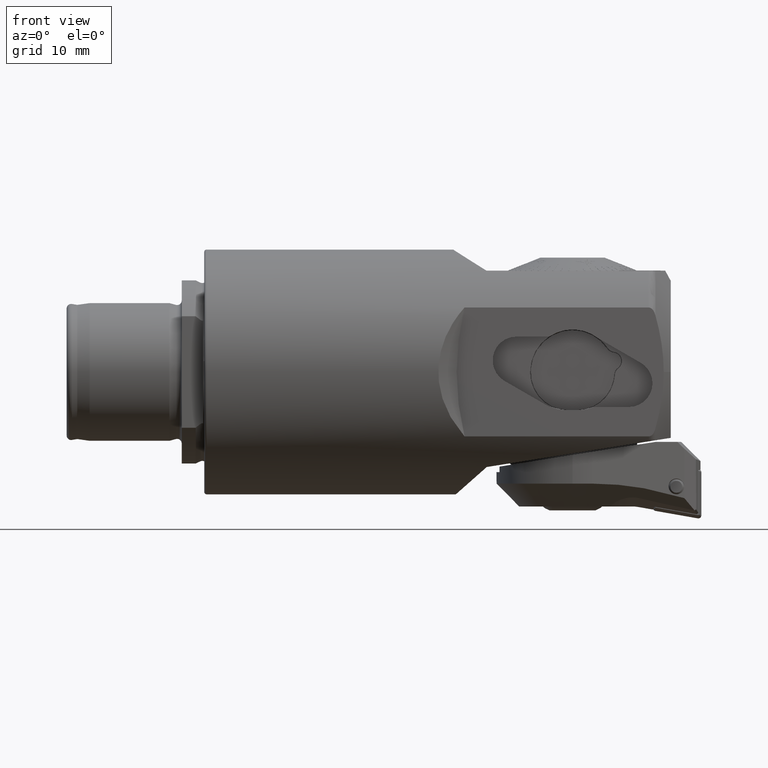
[diagram: clean part render]
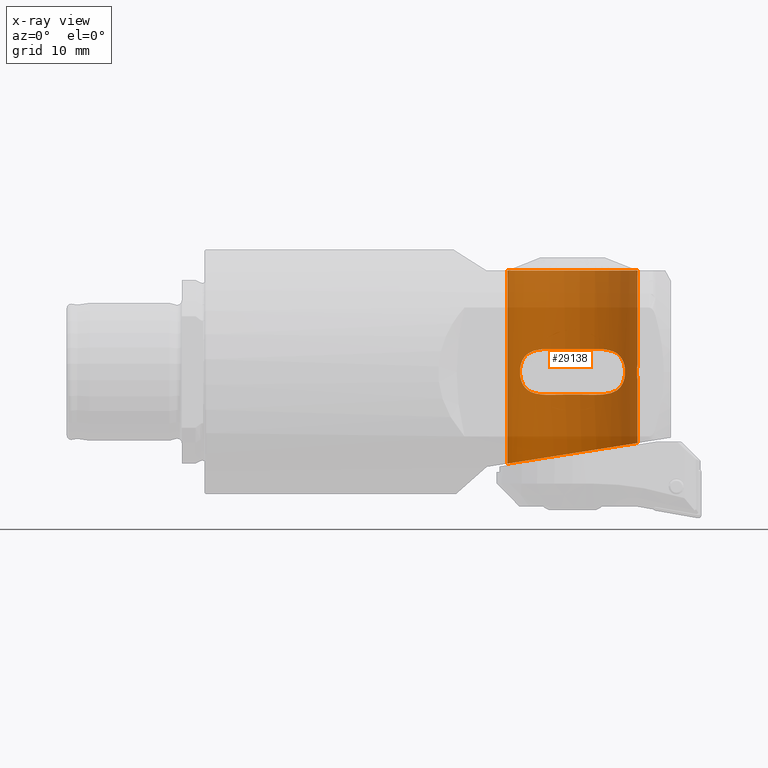
[diagram: x-ray — body ghosted, one internal face saturated and labeled with its STEP entity id]
A machine part, front view, then the same camera in x-ray: the body is ghosted and one INTERNAL B-rep face — a face not visible from any outside direction — is saturated and labeled: STEP entity #29138.
In plain terms, the highlighted cylindrical surface (partial cylindrical patch) has radius 8.5 mm, axis along (-0, 0, 1).
Its self-contained STEP definition (entity closure, byte-faithful):
#125 = CARTESIAN_POINT ( 'NONE',  ( 48.63537778490447700, 8.489662745839011000, 2.959845087906964000 ) ) ;
#214 = CARTESIAN_POINT ( 'NONE',  ( 45.27771867673098400, 8.000000000000003600, -2.999999999999995600 ) ) ;
#511 = VECTOR ( 'NONE', #24222, 1000.000000000000000 ) ;
#546 = DIRECTION ( 'NONE',  ( -1.000000000000000000, 0.0000000000000000000, 1.020425574104003400E-015 ) ) ;
#555 = CARTESIAN_POINT ( 'NONE',  ( 45.27771867673098400, 8.000000000000003600, 2.999999999999994700 ) ) ;
#663 = CARTESIAN_POINT ( 'NONE',  ( 41.65864989494210800, 5.488118193118324100, 1.645120841275565800 ) ) ;
#689 = CARTESIAN_POINT ( 'NONE',  ( 56.65000000000001300, 17.00000000000000400, -9.305574050961578100 ) ) ;
#762 = CARTESIAN_POINT ( 'NONE',  ( 42.70334641185221600, 6.530523071464355800, -2.623080800397005900 ) ) ;
#1378 = CARTESIAN_POINT ( 'NONE',  ( 46.21308368058195300, 8.290626976574149200, -2.987071335539664800 ) ) ;
#2824 = EDGE_CURVE ( 'NONE', #21870, #15167, #31178, .T. ) ;
#2934 = ORIENTED_EDGE ( 'NONE', *, *, #16660, .F. ) ;
#3274 = CARTESIAN_POINT ( 'NONE',  ( 41.41443280274480500, 5.185600075802308400, 1.072886240138314600 ) ) ;
#3377 = EDGE_CURVE ( 'NONE', #23010, #16680, #27646, .T. ) ;
#3397 = CARTESIAN_POINT ( 'NONE',  ( 43.33613252190994600, 7.010557413731154600, -2.837289500417826000 ) ) ;
#3627 = EDGE_CURVE ( 'NONE', #25763, #16680, #27636, .T. ) ;
#3986 = CARTESIAN_POINT ( 'NONE',  ( 47.65825021625389000, 8.500019644735912600, -2.958036570983421800 ) ) ;
#4192 = EDGE_LOOP ( 'NONE', ( #23709, #30011, #31948, #11551, #27743, #14951, #18220, #10648 ) ) ;
#4613 = CARTESIAN_POINT ( 'NONE',  ( 48.14999999999999900, 0.0000000000000000000, 13.24999999999999800 ) ) ;
#5358 = CYLINDRICAL_SURFACE ( 'NONE', #20346, 8.500000000000007100 ) ;
#5788 = CARTESIAN_POINT ( 'NONE',  ( 43.56566974657391000, 7.162991750912891800, 2.884449822117805900 ) ) ;
#5904 = CARTESIAN_POINT ( 'NONE',  ( 41.27639160501142600, 5.000350769485930200, 0.2782492431513027300 ) ) ;
#6013 = CARTESIAN_POINT ( 'NONE',  ( 44.26484228489494700, 7.579637851703669300, -2.984151791620357500 ) ) ;
#6172 = FACE_OUTER_BOUND ( 'NONE', #4192, .T. ) ;
#6205 = CARTESIAN_POINT ( 'NONE',  ( 51.02228132326901300, 8.000000000000007100, -2.999999999999995100 ) ) ;
#6274 = CARTESIAN_POINT ( 'NONE',  ( 56.64867636752925500, 0.1500000000000147600, 13.25999999998293400 ) ) ;
#6437 = CARTESIAN_POINT ( 'NONE',  ( 39.64999999999999100, 1.040949779275251100E-015, 13.24999999999999800 ) ) ;
#6594 = CARTESIAN_POINT ( 'NONE',  ( 49.12765651971885500, 8.457557094866334800, -2.966088603278695100 ) ) ;
#7204 = DIRECTION ( 'NONE',  ( 1.000000000000000000, 0.0000000000000000000, 0.0000000000000000000 ) ) ;
#7521 = CARTESIAN_POINT ( 'NONE',  ( 48.38874539315133900, 8.500159604427034700, 2.958012913581259600 ) ) ;
#7613 = CARTESIAN_POINT ( 'NONE',  ( 39.64999999999999900, 1.040949779275250700E-015, -11.99810953647857700 ) ) ;
#7739 = VERTEX_POINT ( 'NONE', #26135 ) ;
#8182 = EDGE_LOOP ( 'NONE', ( #10646, #2934, #32664, #21428 ) ) ;
#8374 = CARTESIAN_POINT ( 'NONE',  ( 42.90854361524926500, 6.696865106547043000, 2.707555458065671300 ) ) ;
#8470 = DIRECTION ( 'NONE',  ( -1.177232236324893900E-016, -0.0000000000000000000, 1.000000000000000000 ) ) ;
#8485 = CARTESIAN_POINT ( 'NONE',  ( 41.30360915932407600, 5.038370938250750400, -0.5489112779739860900 ) ) ;
#8510 = CARTESIAN_POINT ( 'NONE',  ( 39.64999999999999900, 1.040949779275250700E-015, -11.99810953647857700 ) ) ;
#8572 = EDGE_CURVE ( 'NONE', #25763, #7739, #20293, .T. ) ;
#8589 = CARTESIAN_POINT ( 'NONE',  ( 45.27771867673098400, 8.000000000000003600, -2.999999999999995600 ) ) ;
#8824 = CARTESIAN_POINT ( 'NONE',  ( 49.12332707316140600, 8.447638696157447700, 2.966491555149287900 ) ) ;
#8916 = VECTOR ( 'NONE', #19170, 1000.000000000000000 ) ;
#9091 = CARTESIAN_POINT ( 'NONE',  ( 51.02228132326901300, 8.000000000000007100, 2.999999999999995100 ) ) ;
#9159 = CARTESIAN_POINT ( 'NONE',  ( 56.64867636752924800, 0.1500000000000147300, 13.24999999999999800 ) ) ;
#9202 = CARTESIAN_POINT ( 'NONE',  ( 50.55958788135993800, 8.166123216449319600, -2.999999999999994700 ) ) ;
#9301 = VECTOR ( 'NONE', #24613, 1000.000000000000000 ) ;
#10107 = CARTESIAN_POINT ( 'NONE',  ( 47.17217611920003200, 8.457521000305085600, 2.966092555934865400 ) ) ;
#10139 = CARTESIAN_POINT ( 'NONE',  ( 52.03322976502904100, 7.580694241294167100, -2.984340431836401700 ) ) ;
#10516 = LINE ( 'NONE', #26574, #8916 ) ;
#10627 = CARTESIAN_POINT ( 'NONE',  ( 56.65000000000000600, -9.124757127135396900E-017, -1.024999999999993000 ) ) ;
#10646 = ORIENTED_EDGE ( 'NONE', *, *, #24677, .F. ) ;
#10648 = ORIENTED_EDGE ( 'NONE', *, *, #22077, .F. ) ;
#10668 = CARTESIAN_POINT ( 'NONE',  ( 56.64659970226756500, 0.2702162235421085000, -0.9977094643107639000 ) ) ;
#10736 = CARTESIAN_POINT ( 'NONE',  ( 56.65000000000001300, 0.1355486860064047100, -1.024999999999992800 ) ) ;
#10777 = CARTESIAN_POINT ( 'NONE',  ( 56.63517687510412900, 0.5167172401197505100, -0.8952342019849658400 ) ) ;
#10844 = CARTESIAN_POINT ( 'NONE',  ( 56.62708301105063000, 0.6309017780517041100, -0.8187971447781669000 ) ) ;
#10940 = CARTESIAN_POINT ( 'NONE',  ( 42.32409509919054400, 6.194636282143095600, 2.404401531082887000 ) ) ;
#10949 = CARTESIAN_POINT ( 'NONE',  ( 56.61091715549132900, 0.8196671993584855300, -0.6297709902349396500 ) ) ;
#10996 = CARTESIAN_POINT ( 'NONE',  ( 56.60283044053154800, 0.8957283800405527700, -0.5160811727618728200 ) ) ;
#11030 = EDGE_CURVE ( 'NONE', #15167, #11584, #13845, .T. ) ;
#11058 = CARTESIAN_POINT ( 'NONE',  ( 41.49576034608691800, 5.291437940885486100, -1.314485014349701100 ) ) ;
#11069 = CARTESIAN_POINT ( 'NONE',  ( 56.59131167511774400, 0.9984633146527687200, -0.2678434561118661100 ) ) ;
#11109 = CARTESIAN_POINT ( 'NONE',  ( 56.58796029374404000, 1.025098088485406200, -0.1348038981967006300 ) ) ;
#11174 = CARTESIAN_POINT ( 'NONE',  ( 56.58798418983433700, 1.024901371802748900, 0.1362914526384664800 ) ) ;
#11217 = CARTESIAN_POINT ( 'NONE',  ( 56.59135641553048400, 0.9980944167856723400, 0.2692241509072027000 ) ) ;
#11258 = CARTESIAN_POINT ( 'NONE',  ( 56.60290895058206200, 0.8949976938551109700, 0.5173521394992668400 ) ) ;
#11293 = CARTESIAN_POINT ( 'NONE',  ( 56.61099910906117600, 0.8188393274604298700, 0.6308564790467541300 ) ) ;
#11329 = CARTESIAN_POINT ( 'NONE',  ( 56.62717020501170100, 0.6297531921250643100, 0.8196881470165398000 ) ) ;
#11369 = CARTESIAN_POINT ( 'NONE',  ( 56.63525278981113300, 0.5154948906647004400, 0.8959445085807991000 ) ) ;
#11399 = CARTESIAN_POINT ( 'NONE',  ( 56.65000000000127800, -1.210826547212480900E-012, 1.025000000010504800 ) ) ;
#11480 = CARTESIAN_POINT ( 'NONE',  ( 56.65000000000006300, 0.1338225815928278100, 1.025000000000229100 ) ) ;
#11551 = ORIENTED_EDGE ( 'NONE', *, *, #3627, .F. ) ;
#11584 = VERTEX_POINT ( 'NONE', #26376 ) ;
#11639 = CARTESIAN_POINT ( 'NONE',  ( 45.27771867673098400, 8.000000000000003600, -2.999999999999995600 ) ) ;
#11724 = CARTESIAN_POINT ( 'NONE',  ( 56.64664691677069200, 0.2687769726558990000, 0.9981034434002479200 ) ) ;
#12666 = CARTESIAN_POINT ( 'NONE',  ( 46.21662074643017300, 8.280818384112857100, 2.987484974730763900 ) ) ;
#12885 = EDGE_CURVE ( 'NONE', #24605, #25260, #16114, .T. ) ;
#13502 = CARTESIAN_POINT ( 'NONE',  ( 41.92246781595563500, 5.786204396503421800, 2.027846207156974900 ) ) ;
#13606 = CARTESIAN_POINT ( 'NONE',  ( 41.84373278546217300, 5.703529613794722200, -1.943853097541498300 ) ) ;
#13845 = B_SPLINE_CURVE_WITH_KNOTS ( 'NONE', 3,
 ( #9091, #24546, #29520, #14426, #8824, #125, #7521, #25328, #10107, #27823, #12666, #30324, #15254, #32830 ),
 .UNSPECIFIED., .F., .F.,
 ( 4, 2, 2, 2, 2, 2, 4 ),
 ( 0.01888236624017058200, 0.02033785301443121300, 0.02106559640156153600, 0.02179333978869186400, 0.02324882656295253200, 0.02397656995008285600, 0.02470431333721318300 ),
 .UNSPECIFIED. ) ;
#13878 = CARTESIAN_POINT ( 'NONE',  ( 54.96813700295777500, 5.075931481308789000, -0.6839805621786629900 ) ) ;
#14242 = VECTOR ( 'NONE', #30816, 1000.000000000000000 ) ;
#14426 = CARTESIAN_POINT ( 'NONE',  ( 49.36533220185988600, 8.416195550235302700, 2.971287552637357900 ) ) ;
#14596 = B_SPLINE_CURVE_WITH_KNOTS ( 'NONE', 3,
 ( #11639, #29309, #1378, #19415, #3986, #21922, #6594, #24433, #9202, #26936 ),
 .UNSPECIFIED., .F., .F.,
 ( 4, 2, 2, 2, 4 ),
 ( 0.0000000000000000000, 0.001458114751736730300, 0.002916229503473460600, 0.004374344255210191100, 0.005832459006946921200 ),
 .UNSPECIFIED. ) ;
#14951 = ORIENTED_EDGE ( 'NONE', *, *, #29799, .F. ) ;
#15167 = VERTEX_POINT ( 'NONE', #21231 ) ;
#15254 = CARTESIAN_POINT ( 'NONE',  ( 45.50771932270862400, 8.082578319972675700, 2.999999999999995600 ) ) ;
#15632 = AXIS2_PLACEMENT_3D ( 'NONE', #31050, #16005, #546 ) ;
#15935 = AXIS2_PLACEMENT_3D ( 'NONE', #4613, #22526, #7204 ) ;
#15969 = VERTEX_POINT ( 'NONE', #7613 ) ;
#16005 = DIRECTION ( 'NONE',  ( -9.925724861851712300E-016, -6.123031769111787700E-017, -1.000000000000000000 ) ) ;
#16012 = CARTESIAN_POINT ( 'NONE',  ( 44.76227566509955100, 7.814937833060194600, 2.999999999999995100 ) ) ;
#16113 = CARTESIAN_POINT ( 'NONE',  ( 41.71829197919230100, 5.558148719426170300, 1.747014148778382600 ) ) ;
#16114 = LINE ( 'NONE', #27112, #9301 ) ;
#16118 = CARTESIAN_POINT ( 'NONE',  ( 52.96320608135613400, 7.010995180984328300, -2.837422452173200800 ) ) ;
#16230 = CARTESIAN_POINT ( 'NONE',  ( 42.32527209172545200, 6.195668784786594300, -2.405058043939161600 ) ) ;
#16239 = CARTESIAN_POINT ( 'NONE',  ( 53.39290407826050700, 6.695742157188290000, -2.707029402056234900 ) ) ;
#16392 = CARTESIAN_POINT ( 'NONE',  ( 53.59569692559970400, 6.531369115203229800, -2.623629666250832000 ) ) ;
#16550 = CARTESIAN_POINT ( 'NONE',  ( 51.02228132326901300, 8.000000000000007100, -2.999999999999995100 ) ) ;
#16660 = EDGE_CURVE ( 'NONE', #11584, #21698, #21103, .T. ) ;
#16680 = VERTEX_POINT ( 'NONE', #28848 ) ;
#16748 = EDGE_CURVE ( 'NONE', #15969, #19720, #10516, .T. ) ;
#16799 = CARTESIAN_POINT ( 'NONE',  ( 53.97563739331108200, 6.194864525247696800, -2.404536383422212900 ) ) ;
#17629 = CARTESIAN_POINT ( 'NONE',  ( 54.14890825920025500, 6.025953823217781400, -2.270491246751215300 ) ) ;
#18220 = ORIENTED_EDGE ( 'NONE', *, *, #12885, .T. ) ;
#18699 = DIRECTION ( 'NONE',  ( 1.000000000000000000, 0.0000000000000000000, 0.0000000000000000000 ) ) ;
#18715 = CARTESIAN_POINT ( 'NONE',  ( 41.49773162309426100, 5.293920607064866800, 1.319479251713128200 ) ) ;
#18749 = CARTESIAN_POINT ( 'NONE',  ( 56.65000000000001300, 0.0000000000000000000, -9.305574050961579900 ) ) ;
#18827 = CARTESIAN_POINT ( 'NONE',  ( 42.90578715484940600, 6.694734272739411900, -2.706564191358206800 ) ) ;
#19170 = DIRECTION ( 'NONE',  ( -1.177232236324893900E-016, -0.0000000000000000000, 1.000000000000000000 ) ) ;
#19415 = CARTESIAN_POINT ( 'NONE',  ( 47.17056161154629000, 8.457354251558232500, -2.966123107980676500 ) ) ;
#19720 = VERTEX_POINT ( 'NONE', #6437 ) ;
#20293 = LINE ( 'NONE', #30829, #14242 ) ;
#20346 = AXIS2_PLACEMENT_3D ( 'NONE', #23751, #8470, #18699 ) ;
#21103 = B_SPLINE_CURVE_WITH_KNOTS ( 'NONE', 3,
 ( #555, #16012, #21162, #5788, #23670, #8374, #26146, #10940, #28640, #13502, #31170, #16113, #663, #18715, #3274, #21267, #5904, #23765, #8485, #26255, #11058, #28735, #13606, #31287, #16230, #762, #18827, #3397, #21370, #6013, #23878, #8589 ),
 .UNSPECIFIED., .F., .F.,
 ( 4, 2, 2, 2, 2, 2, 2, 2, 2, 2, 2, 2, 2, 2, 2, 4 ),
 ( 0.02470431333721318300, 0.02633522285732735000, 0.02715067761738443300, 0.02796613237744151300, 0.02878158713749859700, 0.02918931451752714000, 0.02959704189755568000, 0.03041249665761276700, 0.03122795141766985000, 0.03204340617772693400, 0.03285886093778402100, 0.03367431569784110100, 0.03448977045789819500, 0.03530522521795527400, 0.03612067997801236100, 0.03775158949812652800 ),
 .UNSPECIFIED. ) ;
#21162 = CARTESIAN_POINT ( 'NONE',  ( 44.26933341745868200, 7.582121448489333600, 2.984612513812924000 ) ) ;
#21231 = CARTESIAN_POINT ( 'NONE',  ( 51.02228132326901300, 8.000000000000007100, 2.999999999999995100 ) ) ;
#21267 = CARTESIAN_POINT ( 'NONE',  ( 41.30474422536753600, 5.039919344073085000, 0.5566456036019601400 ) ) ;
#21370 = CARTESIAN_POINT ( 'NONE',  ( 43.56459162568907600, 7.162253147533547800, -2.884206437474673200 ) ) ;
#21428 = ORIENTED_EDGE ( 'NONE', *, *, #2824, .F. ) ;
#21698 = VERTEX_POINT ( 'NONE', #214 ) ;
#21870 = VERTEX_POINT ( 'NONE', #16550 ) ;
#21922 = CARTESIAN_POINT ( 'NONE',  ( 48.64242867634025200, 8.499980341708358400, -2.958043214407522400 ) ) ;
#22077 = EDGE_CURVE ( 'NONE', #19720, #25260, #26149, .T. ) ;
#22526 = DIRECTION ( 'NONE',  ( 0.0000000000000000000, 0.0000000000000000000, -1.000000000000000000 ) ) ;
#23010 = VERTEX_POINT ( 'NONE', #29303 ) ;
#23670 = CARTESIAN_POINT ( 'NONE',  ( 43.33787925374309700, 7.011730258072941700, 2.837664537295993200 ) ) ;
#23679 = CARTESIAN_POINT ( 'NONE',  ( 56.65000000000000600, 0.0000000000000000000, 32.04064146385120900 ) ) ;
#23709 = ORIENTED_EDGE ( 'NONE', *, *, #16748, .F. ) ;
#23751 = CARTESIAN_POINT ( 'NONE',  ( 48.14999999999999900, 0.0000000000000000000, 32.04064146385120900 ) ) ;
#23765 = CARTESIAN_POINT ( 'NONE',  ( 41.27588482596450300, 4.999654063997937200, -0.2706333529959550300 ) ) ;
#23800 = CARTESIAN_POINT ( 'NONE',  ( 39.65000000000000600, 17.00000000000000400, -11.99810953647857800 ) ) ;
#23878 = CARTESIAN_POINT ( 'NONE',  ( 44.75877273124028500, 7.813680156622610600, -2.999999999999995100 ) ) ;
#23992 = CARTESIAN_POINT ( 'NONE',  ( 52.73477111044036300, 7.162679213246329700, -2.884340510959918300 ) ) ;
#24113 = CIRCLE ( 'NONE', #15632, 8.500000000000007100 ) ;
#24182 = CARTESIAN_POINT ( 'NONE',  ( 54.88599297376213600, 5.185044747502317400, -1.071471591873935900 ) ) ;
#24222 = DIRECTION ( 'NONE',  ( -1.177232236324893900E-016, -0.0000000000000000000, 1.000000000000000000 ) ) ;
#24433 = CARTESIAN_POINT ( 'NONE',  ( 50.08505671088906300, 8.291057822082526800, -2.987026186990475300 ) ) ;
#24546 = CARTESIAN_POINT ( 'NONE',  ( 50.56052150972414700, 8.165788011035145300, 2.999999999999995100 ) ) ;
#24605 = VERTEX_POINT ( 'NONE', #6274 ) ;
#24613 = DIRECTION ( 'NONE',  ( -9.925724861851714300E-016, -6.123031769111788900E-017, -1.000000000000000000 ) ) ;
#24677 = EDGE_CURVE ( 'NONE', #21698, #21870, #14596, .T. ) ;
#25260 = VERTEX_POINT ( 'NONE', #9159 ) ;
#25328 = CARTESIAN_POINT ( 'NONE',  ( 47.65566031164085100, 8.499675224762972500, 2.958094788375544400 ) ) ;
#25755 = CARTESIAN_POINT ( 'NONE',  ( 51.53991089315904600, 7.814152781754143200, -2.999999999999995100 ) ) ;
#25763 = VERTEX_POINT ( 'NONE', #29038 ) ;
#25862 = CARTESIAN_POINT ( 'NONE',  ( 54.98881016852186600, 5.047893917101199600, -0.5513587531708600300 ) ) ;
#25895 = CARTESIAN_POINT ( 'NONE',  ( 55.01674913995894700, 5.009821730187477200, -0.2788560813882306500 ) ) ;
#25958 = CARTESIAN_POINT ( 'NONE',  ( 54.45448330292382600, 5.705480704113222500, -1.946065263665540900 ) ) ;
#25996 = CARTESIAN_POINT ( 'NONE',  ( 55.02378762471493400, 5.000104369580855100, -0.1396237278777307000 ) ) ;
#26068 = CARTESIAN_POINT ( 'NONE',  ( 55.02393822084112400, 4.999897334190524000, 0.1351020850957542200 ) ) ;
#26116 = CARTESIAN_POINT ( 'NONE',  ( 55.01721279404980400, 5.009184326707703000, 0.2719384311160084600 ) ) ;
#26135 = CARTESIAN_POINT ( 'NONE',  ( 56.65000000000001300, 1.391785311373588400E-032, 13.25999999998293400 ) ) ;
#26146 = CARTESIAN_POINT ( 'NONE',  ( 42.70489594082386000, 6.531885513851490200, 2.623952120750060700 ) ) ;
#26149 = CIRCLE ( 'NONE', #15935, 8.500000000000007100 ) ;
#26186 = CARTESIAN_POINT ( 'NONE',  ( 54.98974244179589000, 5.046628826017536300, 0.5445434882707944600 ) ) ;
#26225 = CARTESIAN_POINT ( 'NONE',  ( 54.96886904614476100, 5.074948052485662100, 0.6798809483205531200 ) ) ;
#26255 = CARTESIAN_POINT ( 'NONE',  ( 41.41283351697832400, 5.183515895099594300, -1.067692641787949500 ) ) ;
#26295 = CARTESIAN_POINT ( 'NONE',  ( 54.91411406066695400, 5.147701795771274300, 0.9394476854515501100 ) ) ;
#26364 = CARTESIAN_POINT ( 'NONE',  ( 54.88012434556412000, 5.192286268435775100, 1.064992503697828500 ) ) ;
#26376 = CARTESIAN_POINT ( 'NONE',  ( 45.27771867673098400, 8.000000000000003600, 2.999999999999994700 ) ) ;
#26433 = CARTESIAN_POINT ( 'NONE',  ( 54.79817260119305900, 5.296811443206896000, 1.307760321224687300 ) ) ;
#26470 = CARTESIAN_POINT ( 'NONE',  ( 54.80267738521421700, 5.293398776311662800, -1.318378693255925800 ) ) ;
#26502 = CARTESIAN_POINT ( 'NONE',  ( 54.75022616432146800, 5.356686416464393500, 1.424414829047031300 ) ) ;
#26550 = CARTESIAN_POINT ( 'NONE',  ( 54.58928177474813000, 5.551031378357256700, 1.751230971248824100 ) ) ;
#26574 = CARTESIAN_POINT ( 'NONE',  ( 39.64999999999999100, 1.040949779275250700E-015, 32.04064146385120900 ) ) ;
#26585 = CARTESIAN_POINT ( 'NONE',  ( 54.45578978390916800, 5.704067952243951500, 1.944509362920062900 ) ) ;
#26618 = CARTESIAN_POINT ( 'NONE',  ( 54.14914888344618000, 6.025743827687680500, 2.270403751865246000 ) ) ;
#26684 = CARTESIAN_POINT ( 'NONE',  ( 53.97442476381734600, 6.195979713230689100, 2.405327690555795000 ) ) ;
#26722 = CARTESIAN_POINT ( 'NONE',  ( 53.59535622253817200, 6.531629509226604600, 2.623733712832840000 ) ) ;
#26796 = CARTESIAN_POINT ( 'NONE',  ( 53.39283522358918800, 6.695792199509341500, 2.707049620359149000 ) ) ;
#26829 = CARTESIAN_POINT ( 'NONE',  ( 52.96329458975219500, 7.010930719453703800, 2.837396269862024300 ) ) ;
#26876 = CARTESIAN_POINT ( 'NONE',  ( 52.73471460972842800, 7.162716495634624500, 2.884351936842824800 ) ) ;
#26908 = CARTESIAN_POINT ( 'NONE',  ( 52.03309274487524000, 7.580768650517685900, 2.984353217133760300 ) ) ;
#26936 = CARTESIAN_POINT ( 'NONE',  ( 51.02228132326901300, 8.000000000000007100, -2.999999999999995100 ) ) ;
#26982 = CARTESIAN_POINT ( 'NONE',  ( 51.53979914250960800, 7.814192904167053500, 2.999999999999994700 ) ) ;
#27086 = CARTESIAN_POINT ( 'NONE',  ( 51.02228132326901300, 8.000000000000007100, 2.999999999999995100 ) ) ;
#27112 = CARTESIAN_POINT ( 'NONE',  ( 56.64867636752925500, 0.1500000000000147600, 13.25999999998293400 ) ) ;
#27498 = CARTESIAN_POINT ( 'NONE',  ( 54.58846239083646200, 5.551971635246609100, -1.752418240108581000 ) ) ;
#27636 = B_SPLINE_CURVE_WITH_KNOTS ( 'NONE', 3,
 ( #11399, #11480, #11724, #11369, #11329, #11293, #11258, #11217, #11174, #11109, #11069, #10996, #10949, #10844, #10777, #10668, #10736, #10627 ),
 .UNSPECIFIED., .F., .F.,
 ( 4, 2, 2, 2, 2, 2, 2, 2, 4 ),
 ( 0.003207534741351681200, 0.003608380961111734000, 0.004009227180871786100, 0.004410073400631838900, 0.004810919620391890900, 0.005211765840151943000, 0.005612612059911996700, 0.006013458279672048700, 0.006414304499432101600 ),
 .UNSPECIFIED. ) ;
#27646 = LINE ( 'NONE', #23679, #511 ) ;
#27743 = ORIENTED_EDGE ( 'NONE', *, *, #8572, .T. ) ;
#27823 = CARTESIAN_POINT ( 'NONE',  ( 46.45455511999029600, 8.332731659663892300, 2.981785919827308000 ) ) ;
#28640 = CARTESIAN_POINT ( 'NONE',  ( 42.15227330949368000, 6.027150921594979700, 2.271579047623789400 ) ) ;
#28735 = CARTESIAN_POINT ( 'NONE',  ( 41.71003071603581700, 5.550226704878790300, -1.750082879047606400 ) ) ;
#28848 = CARTESIAN_POINT ( 'NONE',  ( 56.65000000000000600, -9.124757127135396900E-017, -1.024999999999993000 ) ) ;
#29038 = CARTESIAN_POINT ( 'NONE',  ( 56.65000000000127800, -1.210826547212480900E-012, 1.025000000010504800 ) ) ;
#29138 = ADVANCED_FACE ( 'NONE', ( #6172, #32308 ), #5358, .F. ) ;
#29179 = EDGE_CURVE ( 'NONE', #23010, #15969, #31206, .T. ) ;
#29303 = CARTESIAN_POINT ( 'NONE',  ( 56.65000000000001300, 0.0000000000000000000, -9.305574050961579900 ) ) ;
#29309 = CARTESIAN_POINT ( 'NONE',  ( 45.74168232961405800, 8.166579266856469800, -2.999999999999993800 ) ) ;
#29520 = CARTESIAN_POINT ( 'NONE',  ( 50.08557590109393200, 8.291023189800943900, 2.987035207186488500 ) ) ;
#29799 = EDGE_CURVE ( 'NONE', #24605, #7739, #24113, .T. ) ;
#30011 = ORIENTED_EDGE ( 'NONE', *, *, #29179, .F. ) ;
#30324 = CARTESIAN_POINT ( 'NONE',  ( 45.74331830277795800, 8.155844018680836500, 2.996604425168465400 ) ) ;
#30816 = DIRECTION ( 'NONE',  ( -1.177232236324893900E-016, -0.0000000000000000000, 1.000000000000000000 ) ) ;
#30829 = CARTESIAN_POINT ( 'NONE',  ( 56.65000000000000600, 0.0000000000000000000, 32.04064146385120900 ) ) ;
#31050 = CARTESIAN_POINT ( 'NONE',  ( 48.15000000000000600, 6.123031769111788000E-019, 13.25999999998294300 ) ) ;
#31170 = CARTESIAN_POINT ( 'NONE',  ( 41.85006139347713400, 5.707070948062891200, 1.938342713571235200 ) ) ;
#31178 = B_SPLINE_CURVE_WITH_KNOTS ( 'NONE', 3,
 ( #6205, #25755, #10139, #23992, #16118, #16239, #16392, #16799, #17629, #25958, #27498, #26470, #24182, #13878, #25862, #25895, #25996, #26068, #26116, #26186, #26225, #26295, #26364, #26433, #26502, #26550, #26585, #26618, #26684, #26722, #26796, #26829, #26876, #26908, #26982, #27086 ),
 .UNSPECIFIED., .F., .F.,
 ( 4, 2, 2, 2, 2, 2, 2, 2, 2, 2, 2, 2, 2, 2, 2, 2, 2, 4 ),
 ( 0.005832459006946921200, 0.007463697411099879900, 0.008279316613176365700, 0.009094935815252853200, 0.009910555017329340800, 0.01072617421940582800, 0.01154179342148231600, 0.01194960302252055800, 0.01235741262355879800, 0.01276522222459703900, 0.01317303182563528100, 0.01358084142667352100, 0.01398865102771176100, 0.01480427022978823500, 0.01561988943186470900, 0.01643550863394118200, 0.01725112783601765600, 0.01888236624017058200 ),
 .UNSPECIFIED. ) ;
#31206 =( BOUNDED_CURVE ( )  B_SPLINE_CURVE ( 3, ( #18749, #689, #23800, #8510 ),
 .UNSPECIFIED., .F., .T. ) 
 B_SPLINE_CURVE_WITH_KNOTS ( ( 4, 4 ),
 ( 0.0000000000000000000, 3.141592653589793100 ),
 .UNSPECIFIED. ) 
 CURVE ( )  GEOMETRIC_REPRESENTATION_ITEM ( )  RATIONAL_B_SPLINE_CURVE ( ( 1.000000000000000000, 0.3333333333333333700, 0.3333333333333333700, 1.000000000000000000 ) ) 
 REPRESENTATION_ITEM ( '' )  );
#31287 = CARTESIAN_POINT ( 'NONE',  ( 42.14996419241622000, 6.024850748715714100, -2.269609335258080400 ) ) ;
#31948 = ORIENTED_EDGE ( 'NONE', *, *, #3377, .T. ) ;
#32308 = FACE_BOUND ( 'NONE', #8182, .T. ) ;
#32664 = ORIENTED_EDGE ( 'NONE', *, *, #11030, .F. ) ;
#32830 = CARTESIAN_POINT ( 'NONE',  ( 45.27771867673098400, 8.000000000000003600, 2.999999999999994700 ) ) ;